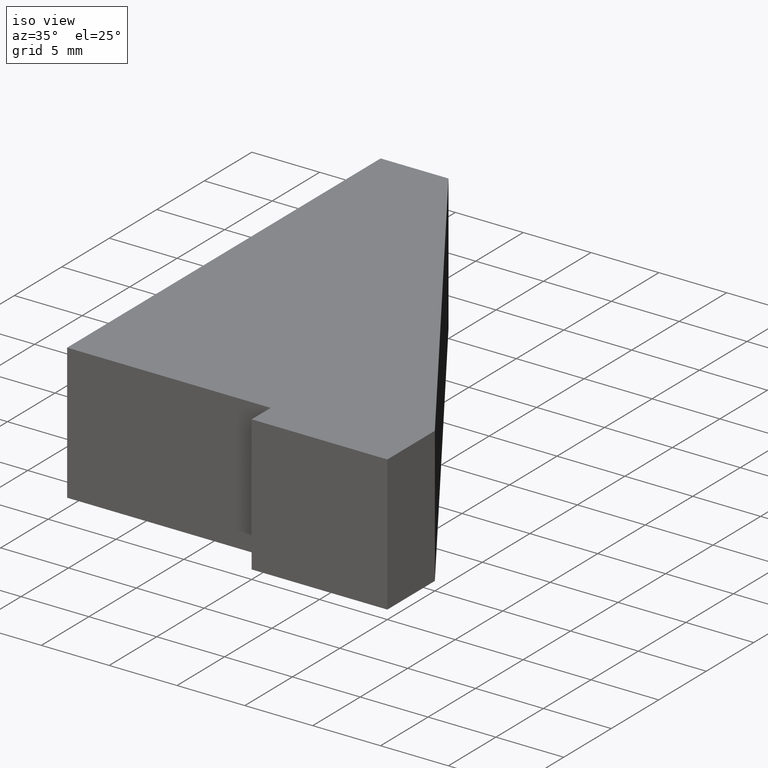
[diagram: clean part render]
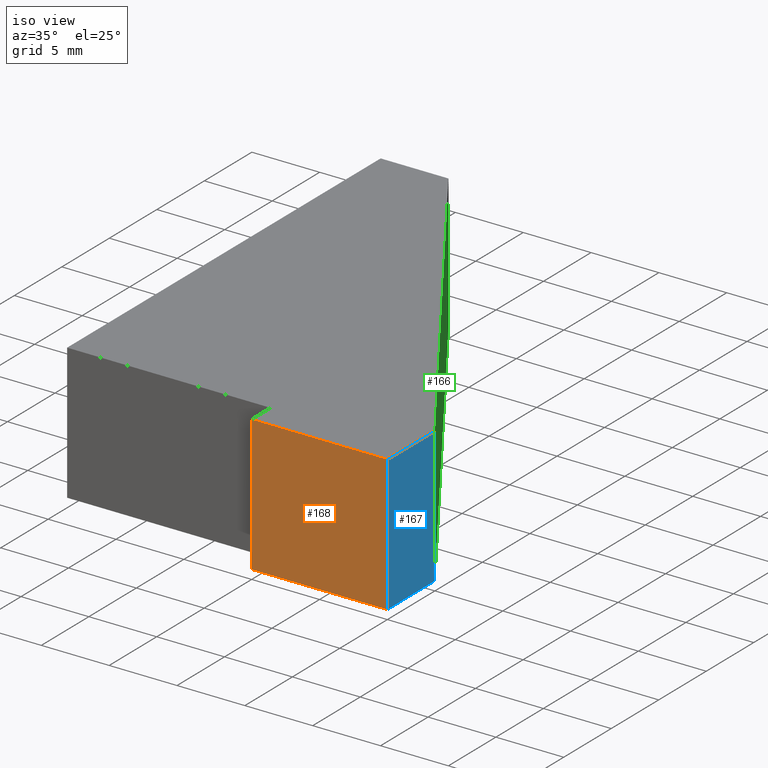
[diagram: same view with three faces highlighted in distinct colors, each labeled with its STEP entity id]
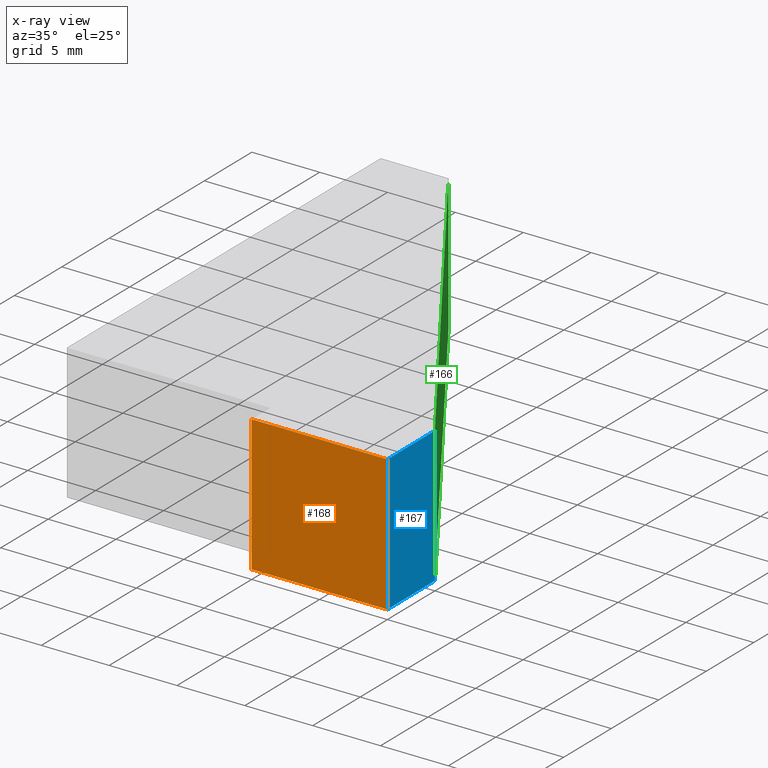
[diagram: x-ray of the same camera — body ghosted, the three highlighted faces saturated]
A machine part, iso view with three faces highlighted in distinct colors.
The next image is the same camera in x-ray (body ghosted, the three faces saturated) — at least one of them is partly hidden behind the body in this view.
Their STEP definitions:

[orange] entity #168 — the highlighted planar face has unit normal (-0, -1, 0).
#22=FACE_OUTER_BOUND('',#31,.T.);
#31=EDGE_LOOP('',(#141,#142,#143,#144));
#34=LINE('',#246,#55);
#42=LINE('',#261,#63);
#52=LINE('',#281,#73);
#53=LINE('',#283,#74);
#55=VECTOR('',#204,10.);
#63=VECTOR('',#214,10.);
#73=VECTOR('',#234,10.);
#74=VECTOR('',#237,10.);
#75=VERTEX_POINT('',#242);
#77=VERTEX_POINT('',#245);
#82=VERTEX_POINT('',#257);
#88=VERTEX_POINT('',#279);
#90=EDGE_CURVE('',#77,#75,#34,.T.);
#98=EDGE_CURVE('',#82,#77,#42,.T.);
#108=EDGE_CURVE('',#75,#88,#52,.T.);
#109=EDGE_CURVE('',#88,#82,#53,.T.);
#141=ORIENTED_EDGE('',*,*,#109,.T.);
#142=ORIENTED_EDGE('',*,*,#98,.T.);
#143=ORIENTED_EDGE('',*,*,#90,.T.);
#144=ORIENTED_EDGE('',*,*,#108,.T.);
#159=PLANE('',#197);
#168=ADVANCED_FACE('',(#22),#159,.T.);
#197=AXIS2_PLACEMENT_3D('',#282,#235,#236);
#204=DIRECTION('',(1.,-1.82783065129353E-17,0.));
#214=DIRECTION('',(0.,0.,-1.));
#234=DIRECTION('',(0.,0.,1.));
#235=DIRECTION('center_axis',(-1.82783065129353E-17,-1.,0.));
#236=DIRECTION('ref_axis',(0.,0.,-1.));
#237=DIRECTION('',(-1.,1.82783065129353E-17,0.));
#242=CARTESIAN_POINT('',(0.,0.,-5.));
#245=CARTESIAN_POINT('',(-10.,1.82783065129353E-16,-5.));
#246=CARTESIAN_POINT('',(0.,0.,-5.));
#257=CARTESIAN_POINT('',(-10.,1.82783065129353E-16,5.));
#261=CARTESIAN_POINT('',(-10.,1.82783065129353E-16,0.));
#279=CARTESIAN_POINT('',(0.,0.,5.));
#281=CARTESIAN_POINT('',(0.,0.,0.));
#282=CARTESIAN_POINT('Origin',(0.,0.,0.));
#283=CARTESIAN_POINT('',(0.,0.,5.));

[blue] entity #167 — the highlighted planar face has unit normal (1, 0, 0).
#21=FACE_OUTER_BOUND('',#30,.T.);
#30=EDGE_LOOP('',(#137,#138,#139,#140));
#33=LINE('',#244,#54);
#50=LINE('',#277,#71);
#51=LINE('',#280,#72);
#52=LINE('',#281,#73);
#54=VECTOR('',#203,10.);
#71=VECTOR('',#230,10.);
#72=VECTOR('',#233,10.);
#73=VECTOR('',#234,10.);
#75=VERTEX_POINT('',#242);
#76=VERTEX_POINT('',#243);
#87=VERTEX_POINT('',#275);
#88=VERTEX_POINT('',#279);
#89=EDGE_CURVE('',#75,#76,#33,.T.);
#106=EDGE_CURVE('',#87,#76,#50,.T.);
#107=EDGE_CURVE('',#87,#88,#51,.T.);
#108=EDGE_CURVE('',#75,#88,#52,.T.);
#137=ORIENTED_EDGE('',*,*,#107,.T.);
#138=ORIENTED_EDGE('',*,*,#108,.F.);
#139=ORIENTED_EDGE('',*,*,#89,.T.);
#140=ORIENTED_EDGE('',*,*,#106,.F.);
#158=PLANE('',#196);
#167=ADVANCED_FACE('',(#21),#158,.T.);
#196=AXIS2_PLACEMENT_3D('',#278,#231,#232);
#203=DIRECTION('',(-1.83697019872103E-16,1.,0.));
#230=DIRECTION('',(0.,0.,-1.));
#231=DIRECTION('center_axis',(1.,1.83697019872103E-16,0.));
#232=DIRECTION('ref_axis',(0.,0.,-1.));
#233=DIRECTION('',(1.83697019872103E-16,-1.,0.));
#234=DIRECTION('',(0.,0.,1.));
#242=CARTESIAN_POINT('',(0.,0.,-5.));
#243=CARTESIAN_POINT('',(-9.18485099360515E-16,5.,-5.));
#244=CARTESIAN_POINT('',(-9.18485099360515E-16,5.,-5.));
#275=CARTESIAN_POINT('',(-9.18485099360515E-16,5.,5.));
#277=CARTESIAN_POINT('',(-9.18485099360515E-16,5.,0.));
#278=CARTESIAN_POINT('Origin',(-9.18485099360515E-16,5.,0.));
#279=CARTESIAN_POINT('',(0.,0.,5.));
#280=CARTESIAN_POINT('',(-9.18485099360515E-16,5.,5.));
#281=CARTESIAN_POINT('',(0.,0.,0.));

[green] entity #166 — the highlighted planar face has unit normal (0.8321, 0.5547, 0).
#20=FACE_OUTER_BOUND('',#29,.T.);
#29=EDGE_LOOP('',(#133,#134,#135,#136));
#39=LINE('',#255,#60);
#48=LINE('',#273,#69);
#49=LINE('',#276,#70);
#50=LINE('',#277,#71);
#60=VECTOR('',#209,10.);
#69=VECTOR('',#226,10.);
#70=VECTOR('',#229,10.);
#71=VECTOR('',#230,10.);
#76=VERTEX_POINT('',#243);
#81=VERTEX_POINT('',#253);
#86=VERTEX_POINT('',#271);
#87=VERTEX_POINT('',#275);
#95=EDGE_CURVE('',#76,#81,#39,.T.);
#104=EDGE_CURVE('',#86,#81,#48,.T.);
#105=EDGE_CURVE('',#86,#87,#49,.T.);
#106=EDGE_CURVE('',#87,#76,#50,.T.);
#133=ORIENTED_EDGE('',*,*,#105,.T.);
#134=ORIENTED_EDGE('',*,*,#106,.T.);
#135=ORIENTED_EDGE('',*,*,#95,.T.);
#136=ORIENTED_EDGE('',*,*,#104,.F.);
#157=PLANE('',#195);
#166=ADVANCED_FACE('',(#20),#157,.T.);
#195=AXIS2_PLACEMENT_3D('',#274,#227,#228);
#209=DIRECTION('',(-0.554700196225229,0.832050294337844,0.));
#226=DIRECTION('',(0.,0.,-1.));
#227=DIRECTION('center_axis',(0.832050294337844,0.554700196225229,0.));
#228=DIRECTION('ref_axis',(0.,0.,-1.));
#229=DIRECTION('',(0.554700196225229,-0.832050294337844,0.));
#230=DIRECTION('',(0.,0.,-1.));
#243=CARTESIAN_POINT('',(-9.18485099360515E-16,5.,-5.));
#253=CARTESIAN_POINT('',(-20.,35.,-5.));
#255=CARTESIAN_POINT('',(-20.,35.,-5.));
#271=CARTESIAN_POINT('',(-20.,35.,5.));
#273=CARTESIAN_POINT('',(-20.,35.,0.));
#274=CARTESIAN_POINT('Origin',(-20.,35.,0.));
#275=CARTESIAN_POINT('',(-9.18485099360515E-16,5.,5.));
#276=CARTESIAN_POINT('',(-20.,35.,5.));
#277=CARTESIAN_POINT('',(-9.18485099360515E-16,5.,0.));